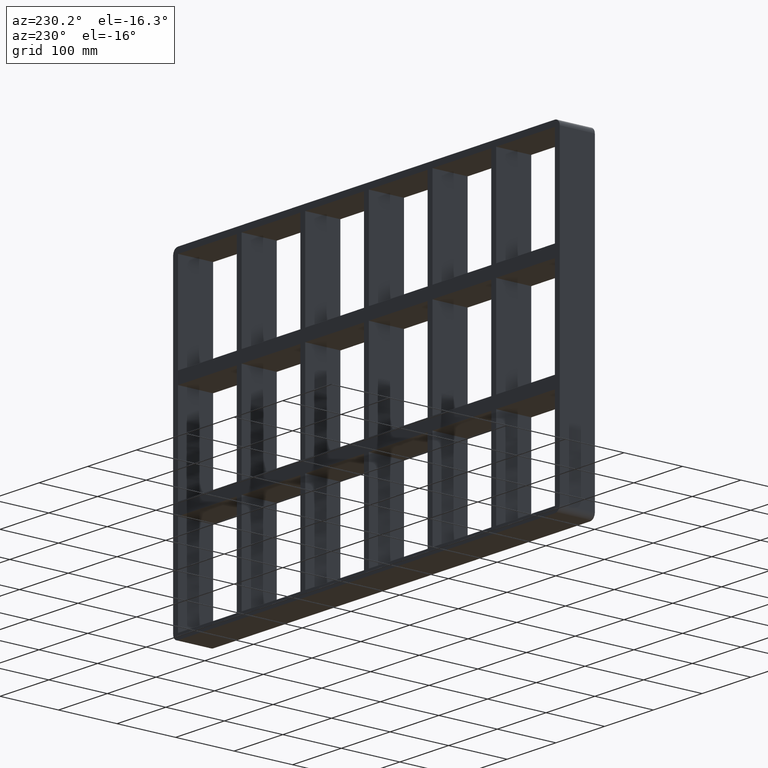
[diagram: clean part render]
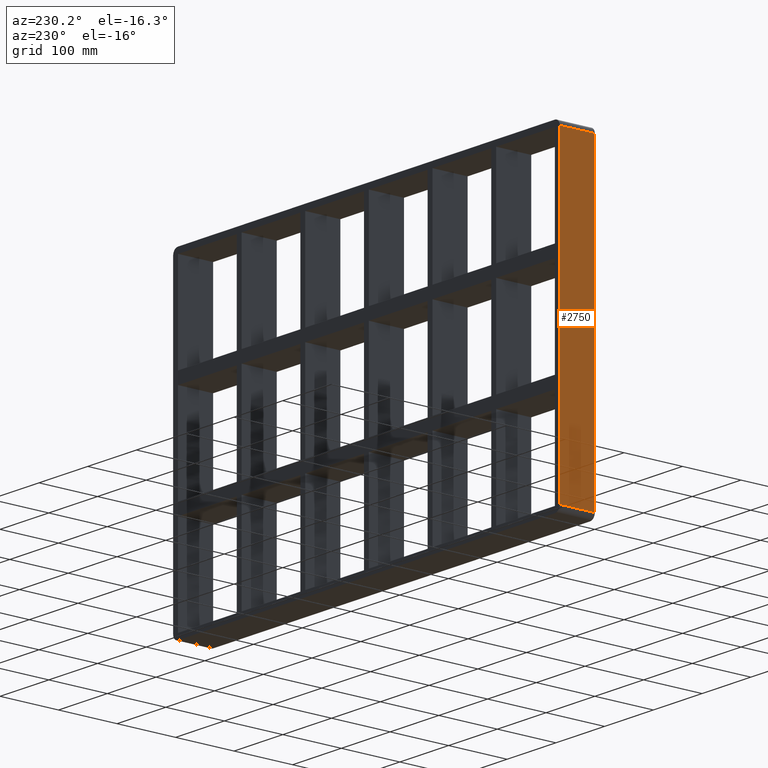
[diagram: same view with one face highlighted and labeled with its STEP entity id]
A machine part, auxiliary view. The second image highlights one B-rep face of the part: STEP entity #2750.
In plain terms, the highlighted planar face has unit normal (-1, 0, 0).
Its self-contained STEP definition (entity closure, byte-faithful):
#1006=CARTESIAN_POINT('',(-396.50000000000006,57.0,-259.25));
#1007=VERTEX_POINT('',#1006);
#1015=CARTESIAN_POINT('',(-396.50000000000006,57.0,259.25000000000006));
#1016=VERTEX_POINT('',#1015);
#1017=CARTESIAN_POINT('',(-396.50000000000006,57.0,-259.25));
#1018=DIRECTION('',(0.0,0.0,1.0));
#1019=VECTOR('',#1018,518.5);
#1020=LINE('',#1017,#1019);
#1021=EDGE_CURVE('',#1007,#1016,#1020,.T.);
#2044=CARTESIAN_POINT('',(-396.50000000000006,-3.0,259.25000000000006));
#2045=VERTEX_POINT('',#2044);
#2053=CARTESIAN_POINT('',(-396.50000000000006,-3.0,-259.25));
#2054=VERTEX_POINT('',#2053);
#2055=CARTESIAN_POINT('',(-396.50000000000006,-3.0,259.25));
#2056=DIRECTION('',(0.0,0.0,-1.0));
#2057=VECTOR('',#2056,518.5);
#2058=LINE('',#2055,#2057);
#2059=EDGE_CURVE('',#2045,#2054,#2058,.T.);
#2725=CARTESIAN_POINT('',(-396.50000000000006,-3.0,-259.25));
#2726=DIRECTION('',(0.0,1.0,0.0));
#2727=VECTOR('',#2726,60.0);
#2728=LINE('',#2725,#2727);
#2729=EDGE_CURVE('',#2054,#1007,#2728,.T.);
#2734=CARTESIAN_POINT('',(-396.50000000000006,0.0,-269.25));
#2735=DIRECTION('',(-1.0,0.0,0.0));
#2736=DIRECTION('',(0.0,0.0,1.0));
#2737=AXIS2_PLACEMENT_3D('',#2734,#2735,#2736);
#2738=PLANE('',#2737);
#2739=ORIENTED_EDGE('',*,*,#2729,.F.);
#2740=ORIENTED_EDGE('',*,*,#2059,.F.);
#2741=CARTESIAN_POINT('',(-396.50000000000006,57.0,259.25000000000006));
#2742=DIRECTION('',(0.0,-1.0,0.0));
#2743=VECTOR('',#2742,60.0);
#2744=LINE('',#2741,#2743);
#2745=EDGE_CURVE('',#1016,#2045,#2744,.T.);
#2746=ORIENTED_EDGE('',*,*,#2745,.F.);
#2747=ORIENTED_EDGE('',*,*,#1021,.F.);
#2748=EDGE_LOOP('',(#2739,#2740,#2746,#2747));
#2749=FACE_OUTER_BOUND('',#2748,.T.);
#2750=ADVANCED_FACE('',(#2749),#2738,.T.);